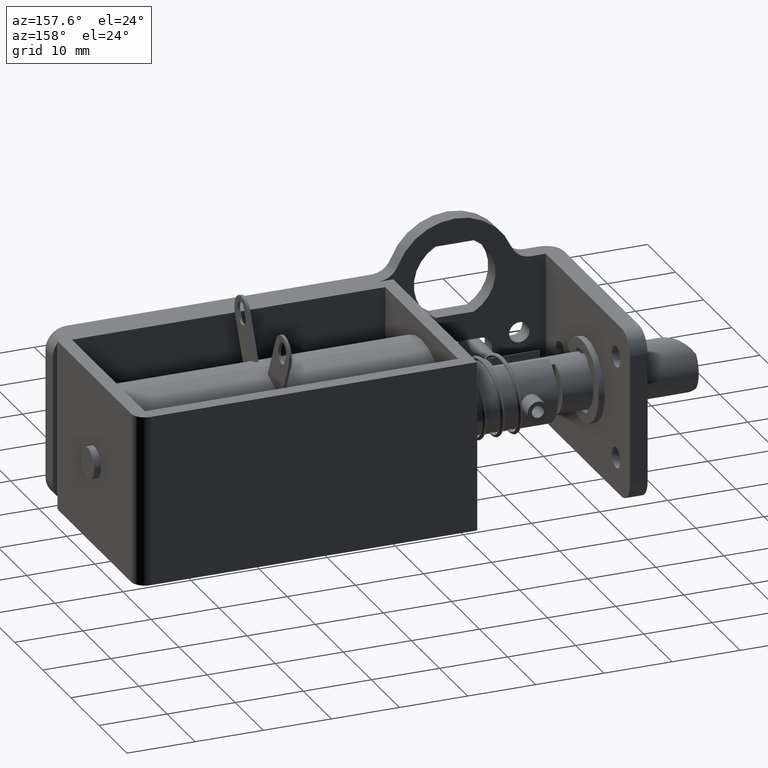
[diagram: clean part render]
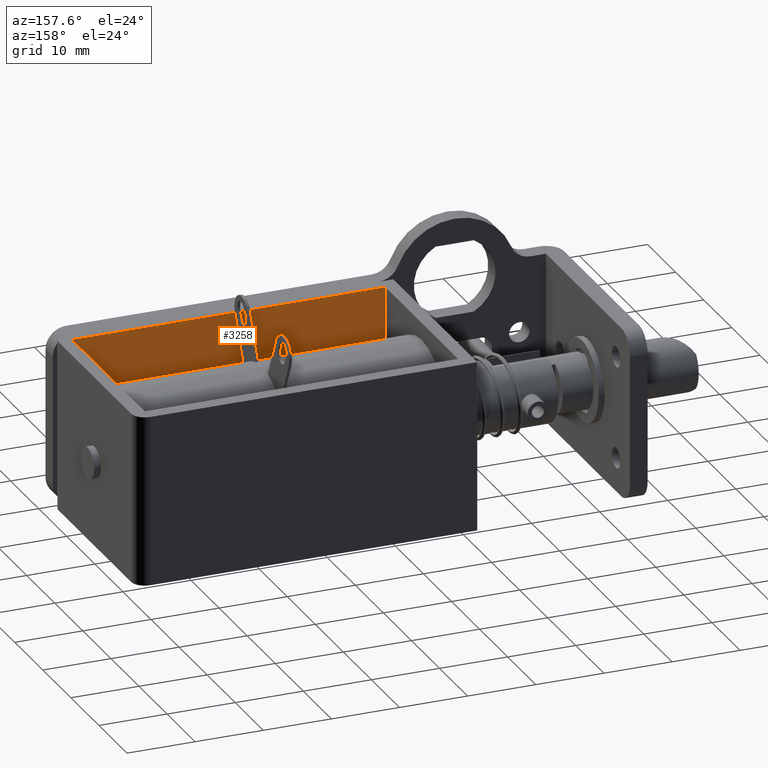
[diagram: same view with one face highlighted and labeled with its STEP entity id]
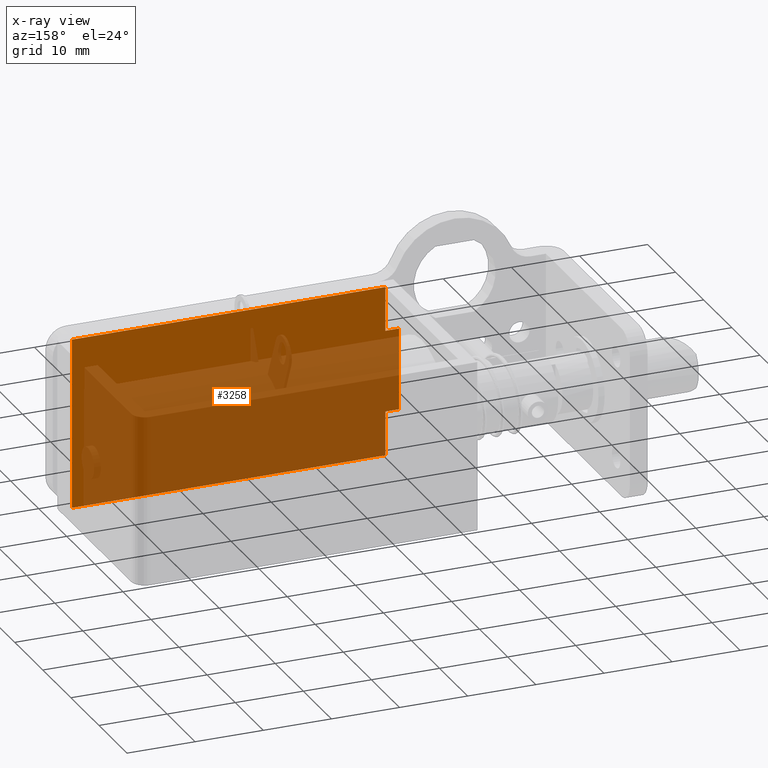
[diagram: x-ray of the same camera — body ghosted, the highlighted face saturated]
A machine part, auxiliary view. The second image highlights one B-rep face of the part: STEP entity #3258.
The next image is the same camera in x-ray: the body ghosted, the highlighted face saturated — about 69% of this face is hidden behind the body in this view.
In plain terms, the highlighted planar face has unit normal (0, 1, 0).
Its self-contained STEP definition (entity closure, byte-faithful):
#84 = CARTESIAN_POINT ( 'NONE',  ( 11.00000000000019900, 4.600000000000159500, 1.500000000000000000 ) ) ;
#98 = LINE ( 'NONE', #5586, #1545 ) ;
#165 = ORIENTED_EDGE ( 'NONE', *, *, #990, .T. ) ;
#225 = VERTEX_POINT ( 'NONE', #5990 ) ;
#231 = CARTESIAN_POINT ( 'NONE',  ( 57.00000000000000000, 4.600000000000109800, -998.5000000000000000 ) ) ;
#318 = EDGE_CURVE ( 'NONE', #7480, #225, #5268, .T. ) ;
#767 = VECTOR ( 'NONE', #6140, 1000.000000000000000 ) ;
#800 = CARTESIAN_POINT ( 'NONE',  ( 11.00000000000019900, 4.600000000000159500, -17.00000000000000000 ) ) ;
#841 = LINE ( 'NONE', #7555, #6363 ) ;
#871 = DIRECTION ( 'NONE',  ( 0.0000000000000000000, 0.0000000000000000000, 1.000000000000000000 ) ) ;
#990 = EDGE_CURVE ( 'NONE', #4681, #225, #7322, .T. ) ;
#1002 = VECTOR ( 'NONE', #7311, 1000.000000000000000 ) ;
#1148 = VERTEX_POINT ( 'NONE', #84 ) ;
#1545 = VECTOR ( 'NONE', #3772, 1000.000000000000000 ) ;
#1585 = ORIENTED_EDGE ( 'NONE', *, *, #5360, .F. ) ;
#1647 = AXIS2_PLACEMENT_3D ( 'NONE', #231, #6937, #3306 ) ;
#1798 = ORIENTED_EDGE ( 'NONE', *, *, #7597, .T. ) ;
#1885 = CARTESIAN_POINT ( 'NONE',  ( 57.00000000000000000, 4.600000000000109800, -998.5000000000000000 ) ) ;
#2084 = PLANE ( 'NONE',  #1647 ) ;
#2389 = VERTEX_POINT ( 'NONE', #800 ) ;
#2519 = ORIENTED_EDGE ( 'NONE', *, *, #3034, .F. ) ;
#2584 = DIRECTION ( 'NONE',  ( 1.000000000000000000, 0.0000000000000000000, 0.0000000000000000000 ) ) ;
#2619 = VECTOR ( 'NONE', #2584, 1000.000000000000000 ) ;
#2658 = DIRECTION ( 'NONE',  ( 0.0000000000000000000, 0.0000000000000000000, -1.000000000000000000 ) ) ;
#3031 = CARTESIAN_POINT ( 'NONE',  ( 0.0000000000000000000, 4.600000000000109800, -23.50000000000000000 ) ) ;
#3034 = EDGE_CURVE ( 'NONE', #1148, #7480, #98, .T. ) ;
#3082 = ORIENTED_EDGE ( 'NONE', *, *, #6188, .F. ) ;
#3228 = EDGE_LOOP ( 'NONE', ( #3082, #165, #5902, #2519, #1585, #7008, #1798, #4550 ) ) ;
#3231 = EDGE_CURVE ( 'NONE', #2389, #5001, #3821, .T. ) ;
#3240 = CARTESIAN_POINT ( 'NONE',  ( 9.000000000000199000, 4.600000000000109800, -998.5000000000000000 ) ) ;
#3258 = ADVANCED_FACE ( 'NONE', ( #6856 ), #2084, .T. ) ;
#3306 = DIRECTION ( 'NONE',  ( 0.0000000000000000000, 0.0000000000000000000, 1.000000000000000000 ) ) ;
#3772 = DIRECTION ( 'NONE',  ( 0.0000000000000000000, 0.0000000000000000000, -1.000000000000000000 ) ) ;
#3781 = CARTESIAN_POINT ( 'NONE',  ( 11.00000000000019900, 4.600000000000109800, -23.50000000000000000 ) ) ;
#3821 = LINE ( 'NONE', #6914, #5461 ) ;
#4033 = CARTESIAN_POINT ( 'NONE',  ( 57.00000000000000000, 4.600000000000109800, -23.50000000000000000 ) ) ;
#4144 = CARTESIAN_POINT ( 'NONE',  ( 9.000000000000199000, 4.600000000000159500, -17.00000000000000000 ) ) ;
#4259 = LINE ( 'NONE', #1885, #1002 ) ;
#4266 = VERTEX_POINT ( 'NONE', #5838 ) ;
#4348 = VECTOR ( 'NONE', #6681, 1000.000000000000000 ) ;
#4550 = ORIENTED_EDGE ( 'NONE', *, *, #3231, .F. ) ;
#4630 = VERTEX_POINT ( 'NONE', #4033 ) ;
#4681 = VERTEX_POINT ( 'NONE', #4144 ) ;
#5001 = VERTEX_POINT ( 'NONE', #3781 ) ;
#5268 = LINE ( 'NONE', #6697, #767 ) ;
#5360 = EDGE_CURVE ( 'NONE', #4266, #1148, #841, .T. ) ;
#5461 = VECTOR ( 'NONE', #2658, 1000.000000000000000 ) ;
#5534 = VECTOR ( 'NONE', #871, 1000.000000000000000 ) ;
#5586 = CARTESIAN_POINT ( 'NONE',  ( 11.00000000000019900, 4.600000000000109800, -998.5000000000000000 ) ) ;
#5838 = CARTESIAN_POINT ( 'NONE',  ( 57.00000000000000000, 4.600000000000109800, 1.499999999999946000 ) ) ;
#5870 = CARTESIAN_POINT ( 'NONE',  ( 11.00000000000019900, 4.600000000000159500, -5.000000000000000000 ) ) ;
#5902 = ORIENTED_EDGE ( 'NONE', *, *, #318, .F. ) ;
#5990 = CARTESIAN_POINT ( 'NONE',  ( 9.000000000000199000, 4.600000000000159500, -5.000000000000000000 ) ) ;
#6140 = DIRECTION ( 'NONE',  ( -1.000000000000000000, 0.0000000000000000000, 0.0000000000000000000 ) ) ;
#6188 = EDGE_CURVE ( 'NONE', #4681, #2389, #7651, .T. ) ;
#6363 = VECTOR ( 'NONE', #6369, 1000.000000000000000 ) ;
#6369 = DIRECTION ( 'NONE',  ( -1.000000000000000000, -0.0000000000000000000, -0.0000000000000000000 ) ) ;
#6681 = DIRECTION ( 'NONE',  ( -1.000000000000000000, -0.0000000000000000000, -0.0000000000000000000 ) ) ;
#6697 = CARTESIAN_POINT ( 'NONE',  ( 57.00000000000000000, 4.600000000000109800, -5.000000000000000000 ) ) ;
#6743 = EDGE_CURVE ( 'NONE', #4630, #4266, #4259, .T. ) ;
#6856 = FACE_OUTER_BOUND ( 'NONE', #3228, .T. ) ;
#6914 = CARTESIAN_POINT ( 'NONE',  ( 11.00000000000019900, 4.600000000000109800, -998.5000000000000000 ) ) ;
#6937 = DIRECTION ( 'NONE',  ( 0.0000000000000000000, 1.000000000000000000, 0.0000000000000000000 ) ) ;
#7008 = ORIENTED_EDGE ( 'NONE', *, *, #6743, .F. ) ;
#7311 = DIRECTION ( 'NONE',  ( 0.0000000000000000000, 0.0000000000000000000, 1.000000000000000000 ) ) ;
#7322 = LINE ( 'NONE', #3240, #5534 ) ;
#7394 = CARTESIAN_POINT ( 'NONE',  ( 57.00000000000000000, 4.600000000000109800, -17.00000000000000000 ) ) ;
#7480 = VERTEX_POINT ( 'NONE', #5870 ) ;
#7532 = LINE ( 'NONE', #3031, #4348 ) ;
#7555 = CARTESIAN_POINT ( 'NONE',  ( 0.0000000000000000000, 4.600000000000109800, 1.500000000000000000 ) ) ;
#7597 = EDGE_CURVE ( 'NONE', #4630, #5001, #7532, .T. ) ;
#7651 = LINE ( 'NONE', #7394, #2619 ) ;